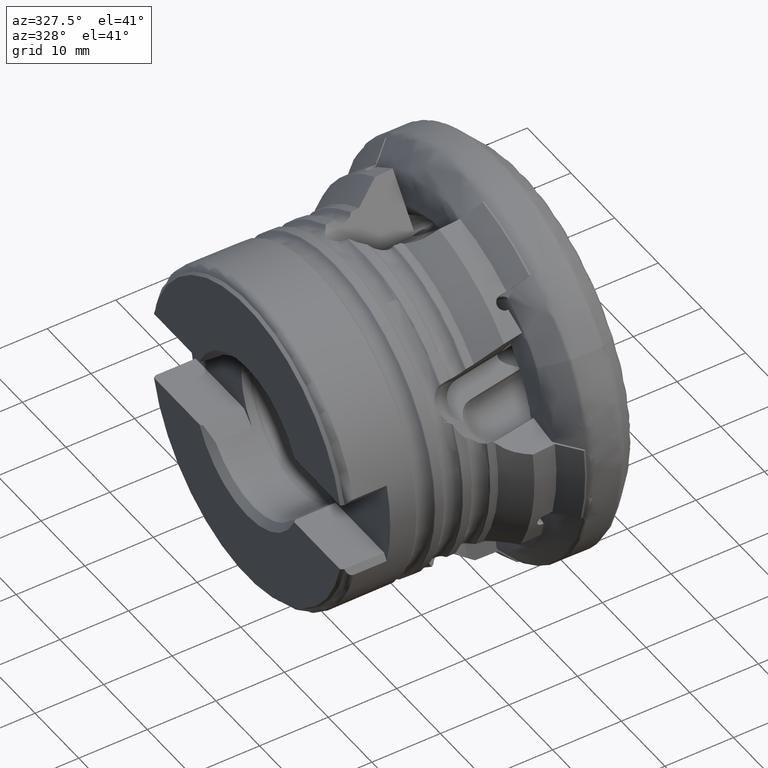
[diagram: clean part render]
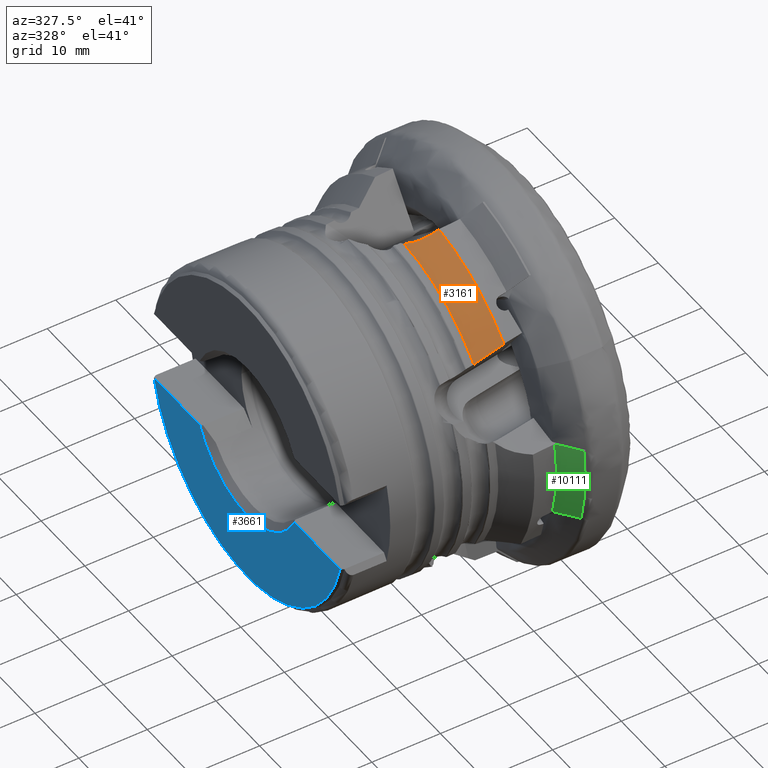
[diagram: same view with three faces highlighted in distinct colors, each labeled with its STEP entity id]
A machine part, auxiliary view with three faces highlighted in distinct colors.
Their STEP definitions:

[orange] entity #3161 — the highlighted conical surface has half-angle 35 deg.
#283 = CARTESIAN_POINT ( 'NONE',  ( -17.09177741719236100, -17.38901991840321800, 15.05396912038073300 ) ) ;
#494 = CARTESIAN_POINT ( 'NONE',  ( -16.81278394266350800, -1.729703990628124000, 23.13182447491075100 ) ) ;
#498 = DIRECTION ( 'NONE',  ( 1.000000000000000000, 1.224646799147353700E-016, -0.0000000000000000000 ) ) ;
#670 = CARTESIAN_POINT ( 'NONE',  ( -16.99323612728315800, -1.501126212548654900, 23.02010754296652500 ) ) ;
#1061 = ORIENTED_EDGE ( 'NONE', *, *, #3544, .F. ) ;
#1340 = CARTESIAN_POINT ( 'NONE',  ( -14.57097482284019700, -3.304314334836477400, 24.54371157015447800 ) ) ;
#1708 = ORIENTED_EDGE ( 'NONE', *, *, #6201, .F. ) ;
#1724 = DIRECTION ( 'NONE',  ( 1.000000000000000000, 1.224646799147353700E-016, -0.0000000000000000000 ) ) ;
#1960 = DIRECTION ( 'NONE',  ( -1.508455196501570700E-016, 1.000000000000000000, 0.0000000000000000000 ) ) ;
#2095 = EDGE_LOOP ( 'NONE', ( #5012, #4713, #1061, #1708, #8271, #5574 ) ) ;
#2123 = CARTESIAN_POINT ( 'NONE',  ( -14.66744534277638600, -18.17916554082694000, 16.72117476408119100 ) ) ;
#2154 = CARTESIAN_POINT ( 'NONE',  ( -17.09177741719236100, -17.38901991840321800, 15.05396912038073300 ) ) ;
#2202 = CARTESIAN_POINT ( 'NONE',  ( -16.20434289690146600, -2.329251206457319000, 23.50697310479047900 ) ) ;
#2219 = EDGE_CURVE ( 'NONE', #3242, #4274, #5347, .T. ) ;
#2360 = CARTESIAN_POINT ( 'NONE',  ( -14.31907578302989500, -3.380992286711682800, 24.71124643157457300 ) ) ;
#2499 = CARTESIAN_POINT ( 'NONE',  ( -13.44999999999999600, -1.647149944853190200E-015, 0.0000000000000000000 ) ) ;
#2899 = CARTESIAN_POINT ( 'NONE',  ( -13.73980114780748900, -3.557206910315650700, 25.09629959974075000 ) ) ;
#3025 = CARTESIAN_POINT ( 'NONE',  ( -14.81667960797364400, -3.204068818295938500, 24.38363031312749000 ) ) ;
#3161 = ADVANCED_FACE ( 'NONE', ( #4097 ), #3840, .T. ) ;
#3242 = VERTEX_POINT ( 'NONE', #8223 ) ;
#3315 = CARTESIAN_POINT ( 'NONE',  ( -17.02616092073438000, -1.459420559903491300, 22.99972398863590700 ) ) ;
#3359 = CARTESIAN_POINT ( 'NONE',  ( -13.44999999999999200, -3.645197496534137400, 25.28863450665656700 ) ) ;
#3544 = EDGE_CURVE ( 'NONE', #5458, #4274, #8727, .T. ) ;
#3572 = EDGE_CURVE ( 'NONE', #10144, #9287, #3899, .T. ) ;
#3840 = CONICAL_SURFACE ( 'NONE', #8332, 25.54999999999999700, 0.6108652381980159700 ) ;
#3887 = DIRECTION ( 'NONE',  ( -1.357904873563058500E-016, 1.000000000000000000, 0.0000000000000000000 ) ) ;
#3899 = B_SPLINE_CURVE_WITH_KNOTS ( 'NONE', 3,
 ( #9453, #494, #6224, #2202, #7037, #5410, #8670, #3025, #1340, #4646 ),
 .UNSPECIFIED., .F., .F.,
 ( 4, 2, 2, 2, 4 ),
 ( 0.0000000000000000000, 0.0009322666585190484900, 0.001864533317038097400, 0.002796799975557146300, 0.003729066634076195700 ),
 .UNSPECIFIED. ) ;
#4097 = FACE_OUTER_BOUND ( 'NONE', #2095, .T. ) ;
#4141 = DIRECTION ( 'NONE',  ( -1.357904873563058500E-016, 1.000000000000000000, 0.0000000000000000000 ) ) ;
#4274 = VERTEX_POINT ( 'NONE', #283 ) ;
#4646 = CARTESIAN_POINT ( 'NONE',  ( -14.31907578302989500, -3.380992286711682800, 24.71124643157457300 ) ) ;
#4713 = ORIENTED_EDGE ( 'NONE', *, *, #2219, .T. ) ;
#4918 = CARTESIAN_POINT ( 'NONE',  ( -17.05900803971395900, -1.417771888325609000, 22.97928544393196400 ) ) ;
#5012 = ORIENTED_EDGE ( 'NONE', *, *, #10496, .F. ) ;
#5144 = AXIS2_PLACEMENT_3D ( 'NONE', #8708, #498, #1960 ) ;
#5347 = CIRCLE ( 'NONE', #5144, 23.00000000000001100 ) ;
#5410 = CARTESIAN_POINT ( 'NONE',  ( -15.53326648616703300, -2.824767493026014700, 23.92552388878390000 ) ) ;
#5458 = VERTEX_POINT ( 'NONE', #5994 ) ;
#5574 = ORIENTED_EDGE ( 'NONE', *, *, #3572, .F. ) ;
#5592 = CIRCLE ( 'NONE', #8840, 25.54999999999999700 ) ;
#5994 = CARTESIAN_POINT ( 'NONE',  ( -13.44999999999999800, -18.56938980795375500, 17.54936643187619800 ) ) ;
#6020 = CARTESIAN_POINT ( 'NONE',  ( -14.31907578302989500, -3.380992286711682800, 24.71124643157457300 ) ) ;
#6183 = CARTESIAN_POINT ( 'NONE',  ( -13.44999999999999800, -18.56938980795375500, 17.54936643187619800 ) ) ;
#6201 = EDGE_CURVE ( 'NONE', #6876, #5458, #5592, .T. ) ;
#6224 = CARTESIAN_POINT ( 'NONE',  ( -16.61789162273989400, -1.939967311233909300, 23.25174155899308200 ) ) ;
#6422 = CARTESIAN_POINT ( 'NONE',  ( -14.02949620350618400, -3.469139396165321200, 24.90383993235173300 ) ) ;
#6876 = VERTEX_POINT ( 'NONE', #10360 ) ;
#7037 = CARTESIAN_POINT ( 'NONE',  ( -15.98656619744976500, -2.507069350563997800, 23.64174319475927900 ) ) ;
#7339 = DIRECTION ( 'NONE',  ( 1.000000000000000000, 1.224646799147353700E-016, -0.0000000000000000000 ) ) ;
#7833 = CARTESIAN_POINT ( 'NONE',  ( -15.88177324624308400, -17.78607819981101600, 15.88978780021098000 ) ) ;
#8109 = EDGE_CURVE ( 'NONE', #9287, #6876, #8655, .T. ) ;
#8135 = CARTESIAN_POINT ( 'NONE',  ( -16.99323612728315800, -1.501126212548654900, 23.02010754296652500 ) ) ;
#8223 = CARTESIAN_POINT ( 'NONE',  ( -17.09177741719236800, -1.376180282805409300, 22.95879195056258500 ) ) ;
#8271 = ORIENTED_EDGE ( 'NONE', *, *, #8109, .F. ) ;
#8332 = AXIS2_PLACEMENT_3D ( 'NONE', #2499, #7339, #4141 ) ;
#8504 = CARTESIAN_POINT ( 'NONE',  ( -13.44999999999999600, -1.647149944853190200E-015, 0.0000000000000000000 ) ) ;
#8655 = B_SPLINE_CURVE_WITH_KNOTS ( 'NONE', 3,
 ( #6020, #6422, #2899, #3359 ),
 .UNSPECIFIED., .F., .F.,
 ( 4, 4 ),
 ( 0.0005733330260200920900, 0.001649659086757639600 ),
 .UNSPECIFIED. ) ;
#8670 = CARTESIAN_POINT ( 'NONE',  ( -15.29731333759014000, -2.964798779107516800, 24.07483052456850500 ) ) ;
#8708 = CARTESIAN_POINT ( 'NONE',  ( -17.09177741719236500, -2.093139050570365100E-015, 0.0000000000000000000 ) ) ;
#8727 = B_SPLINE_CURVE_WITH_KNOTS ( 'NONE', 3,
 ( #6183, #2123, #7833, #2154 ),
 .UNSPECIFIED., .F., .F.,
 ( 4, 4 ),
 ( 2.502383203320370600E-007, 0.004570023052667737700 ),
 .UNSPECIFIED. ) ;
#8840 = AXIS2_PLACEMENT_3D ( 'NONE', #8504, #1724, #3887 ) ;
#8945 = CARTESIAN_POINT ( 'NONE',  ( -17.09177741719236800, -1.376180282805409300, 22.95879195056258500 ) ) ;
#9287 = VERTEX_POINT ( 'NONE', #2360 ) ;
#9336 =( BOUNDED_CURVE ( )  B_SPLINE_CURVE ( 3, ( #8945, #4918, #3315, #8135 ),
 .UNSPECIFIED., .F., .T. ) 
 B_SPLINE_CURVE_WITH_KNOTS ( ( 4, 4 ),
 ( 3.683396287500181600, 3.686253314913215300 ),
 .UNSPECIFIED. ) 
 CURVE ( )  GEOMETRIC_REPRESENTATION_ITEM ( )  RATIONAL_B_SPLINE_CURVE ( ( 1.000000000000000000, 0.9999993197829790700, 0.9999993197829790700, 1.000000000000000000 ) ) 
 REPRESENTATION_ITEM ( '' )  );
#9453 = CARTESIAN_POINT ( 'NONE',  ( -16.99323612728315800, -1.501126212548654900, 23.02010754296652500 ) ) ;
#10144 = VERTEX_POINT ( 'NONE', #670 ) ;
#10360 = CARTESIAN_POINT ( 'NONE',  ( -13.44999999999999200, -3.645197496534137400, 25.28863450665656700 ) ) ;
#10496 = EDGE_CURVE ( 'NONE', #3242, #10144, #9336, .T. ) ;

[blue] entity #3661 — the highlighted planar face has unit normal (-1, -0, 0).
#263 = CARTESIAN_POINT ( 'NONE',  ( -39.10000000000000100, -6.979751427917642700E-015, 0.0000000000000000000 ) ) ;
#456 = AXIS2_PLACEMENT_3D ( 'NONE', #9880, #1793, #6653 ) ;
#686 = PLANE ( 'NONE',  #3063 ) ;
#1284 = FACE_OUTER_BOUND ( 'NONE', #10396, .T. ) ;
#1793 = DIRECTION ( 'NONE',  ( 1.000000000000000000, 1.224646799147353700E-016, -0.0000000000000000000 ) ) ;
#1911 = CARTESIAN_POINT ( 'NONE',  ( -39.10000000000000100, 21.29663569925563800, -5.199999999999993100 ) ) ;
#2042 = ORIENTED_EDGE ( 'NONE', *, *, #2389, .T. ) ;
#2308 = CARTESIAN_POINT ( 'NONE',  ( -39.10000000000000100, -4.788368984666153600E-015, 0.0000000000000000000 ) ) ;
#2389 = EDGE_CURVE ( 'NONE', #9244, #5489, #5958, .T. ) ;
#2552 = EDGE_CURVE ( 'NONE', #3851, #9702, #3085, .T. ) ;
#2814 = VECTOR ( 'NONE', #10052, 1000.000000000000000 ) ;
#2898 = CARTESIAN_POINT ( 'NONE',  ( -39.10000000000000100, -10.84253775644799600, -5.199999999999993100 ) ) ;
#3063 = AXIS2_PLACEMENT_3D ( 'NONE', #2308, #4039, #8851 ) ;
#3085 = LINE ( 'NONE', #7265, #2814 ) ;
#3260 = EDGE_CURVE ( 'NONE', #3851, #5489, #8367, .T. ) ;
#3486 = ORIENTED_EDGE ( 'NONE', *, *, #2552, .T. ) ;
#3508 = ORIENTED_EDGE ( 'NONE', *, *, #9603, .T. ) ;
#3661 = ADVANCED_FACE ( 'NONE', ( #1284 ), #686, .T. ) ;
#3851 = VERTEX_POINT ( 'NONE', #10302 ) ;
#3937 = DIRECTION ( 'NONE',  ( 0.0000000000000000000, -1.000000000000000000, 0.0000000000000000000 ) ) ;
#4039 = DIRECTION ( 'NONE',  ( -1.000000000000000000, -1.224646799147353700E-016, 0.0000000000000000000 ) ) ;
#5257 = ORIENTED_EDGE ( 'NONE', *, *, #3260, .F. ) ;
#5482 = DIRECTION ( 'NONE',  ( 1.000000000000000000, 1.224646799147353700E-016, -0.0000000000000000000 ) ) ;
#5489 = VERTEX_POINT ( 'NONE', #1911 ) ;
#5627 = CARTESIAN_POINT ( 'NONE',  ( -39.10000000000000100, 10.84253775644798200, -5.199999999999993100 ) ) ;
#5938 = CARTESIAN_POINT ( 'NONE',  ( -39.09999999999999400, -54.99999999999999300, -5.199999999999993100 ) ) ;
#5958 = LINE ( 'NONE', #5938, #10024 ) ;
#6653 = DIRECTION ( 'NONE',  ( 0.0000000000000000000, -1.000000000000000000, 0.0000000000000000000 ) ) ;
#7265 = CARTESIAN_POINT ( 'NONE',  ( -39.09999999999999400, -54.99999999999999300, -5.199999999999993100 ) ) ;
#8055 = DIRECTION ( 'NONE',  ( -1.224646799147353700E-016, 1.000000000000000000, 0.0000000000000000000 ) ) ;
#8367 = CIRCLE ( 'NONE', #456, 21.92228756555322600 ) ;
#8481 = CIRCLE ( 'NONE', #9954, 12.02500000000000400 ) ;
#8851 = DIRECTION ( 'NONE',  ( 1.224646799147353700E-016, -1.000000000000000000, 0.0000000000000000000 ) ) ;
#9244 = VERTEX_POINT ( 'NONE', #5627 ) ;
#9603 = EDGE_CURVE ( 'NONE', #9702, #9244, #8481, .T. ) ;
#9702 = VERTEX_POINT ( 'NONE', #2898 ) ;
#9880 = CARTESIAN_POINT ( 'NONE',  ( -39.10000000000000100, -3.487816653940823400E-015, 0.0000000000000000000 ) ) ;
#9954 = AXIS2_PLACEMENT_3D ( 'NONE', #263, #5482, #3937 ) ;
#10024 = VECTOR ( 'NONE', #8055, 1000.000000000000000 ) ;
#10052 = DIRECTION ( 'NONE',  ( -1.224646799147353700E-016, 1.000000000000000000, 0.0000000000000000000 ) ) ;
#10302 = CARTESIAN_POINT ( 'NONE',  ( -39.10000000000000100, -21.29663569925564200, -5.199999999999993100 ) ) ;
#10396 = EDGE_LOOP ( 'NONE', ( #2042, #5257, #3486, #3508 ) ) ;

[green] entity #10111 — the highlighted conical surface has half-angle 45 deg.
#165 = EDGE_CURVE ( 'NONE', #4781, #198, #8813, .T. ) ;
#198 = VERTEX_POINT ( 'NONE', #3399 ) ;
#292 = DIRECTION ( 'NONE',  ( -1.234678630588474800E-016, 1.000000000000000000, 0.0000000000000000000 ) ) ;
#1559 = CARTESIAN_POINT ( 'NONE',  ( -8.536316897199606400, -26.90777013685565700, 4.299903370355748300 ) ) ;
#1815 = VERTEX_POINT ( 'NONE', #4551 ) ;
#1817 = DIRECTION ( 'NONE',  ( -1.234678630588474800E-016, 1.000000000000000000, 0.0000000000000000000 ) ) ;
#1932 = ORIENTED_EDGE ( 'NONE', *, *, #2060, .T. ) ;
#2060 = EDGE_CURVE ( 'NONE', #1815, #4781, #2327, .T. ) ;
#2318 = ORIENTED_EDGE ( 'NONE', *, *, #8850, .F. ) ;
#2327 = CIRCLE ( 'NONE', #6427, 25.55000000000000100 ) ;
#2752 = CARTESIAN_POINT ( 'NONE',  ( -8.534480670999167600, -26.29770865664808000, -7.140705732938710200 ) ) ;
#3399 = CARTESIAN_POINT ( 'NONE',  ( -7.684314575050733800, -27.13838194364330600, -7.288225125566254900 ) ) ;
#3988 = EDGE_LOOP ( 'NONE', ( #1932, #6720, #8550, #2318 ) ) ;
#4408 = CARTESIAN_POINT ( 'NONE',  ( -10.23431457505075100, -24.61589767024377200, -6.845442417264746600 ) ) ;
#4551 = CARTESIAN_POINT ( 'NONE',  ( -10.23431457505075500, -25.14196125802322300, 4.547997812231153100 ) ) ;
#4738 = CARTESIAN_POINT ( 'NONE',  ( -10.23431457505075500, -25.14196125802322300, 4.547997812231153100 ) ) ;
#4781 = VERTEX_POINT ( 'NONE', #4408 ) ;
#5076 = CARTESIAN_POINT ( 'NONE',  ( -7.684314575050733800, -27.78787658810082200, 4.176591280515511400 ) ) ;
#5230 = DIRECTION ( 'NONE',  ( 1.000000000000000000, 1.224646799147353700E-016, -0.0000000000000000000 ) ) ;
#5394 = CARTESIAN_POINT ( 'NONE',  ( -10.23431457505075100, -24.61589767024377200, -6.845442417264746600 ) ) ;
#5743 = AXIS2_PLACEMENT_3D ( 'NONE', #8041, #9653, #1817 ) ;
#5930 = FACE_OUTER_BOUND ( 'NONE', #3988, .T. ) ;
#6175 = B_SPLINE_CURVE_WITH_KNOTS ( 'NONE', 3,
 ( #4738, #6449, #1559, #6418 ),
 .UNSPECIFIED., .F., .F.,
 ( 4, 4 ),
 ( 2.904376201262533800E-007, 0.003693704948034680200 ),
 .UNSPECIFIED. ) ;
#6418 = CARTESIAN_POINT ( 'NONE',  ( -7.684314575050733800, -27.78787658810082200, 4.176591280515511400 ) ) ;
#6427 = AXIS2_PLACEMENT_3D ( 'NONE', #7389, #8731, #8323 ) ;
#6449 = CARTESIAN_POINT ( 'NONE',  ( -9.386535554108565500, -26.02599210727665700, 4.423654001811199200 ) ) ;
#6720 = ORIENTED_EDGE ( 'NONE', *, *, #165, .T. ) ;
#7387 = AXIS2_PLACEMENT_3D ( 'NONE', #8844, #5230, #292 ) ;
#7389 = CARTESIAN_POINT ( 'NONE',  ( -10.23431457505075800, -1.253342058580302000E-015, 0.0000000000000000000 ) ) ;
#7865 = CONICAL_SURFACE ( 'NONE', #5743, 28.10000000000000100, 0.7853981633974442800 ) ;
#8041 = CARTESIAN_POINT ( 'NONE',  ( -7.684314575050737300, -9.410571247977243100E-016, 0.0000000000000000000 ) ) ;
#8122 = CIRCLE ( 'NONE', #7387, 28.10000000000000100 ) ;
#8323 = DIRECTION ( 'NONE',  ( -1.357904873563058300E-016, 1.000000000000000000, 0.0000000000000000000 ) ) ;
#8373 = VERTEX_POINT ( 'NONE', #5076 ) ;
#8550 = ORIENTED_EDGE ( 'NONE', *, *, #10124, .F. ) ;
#8553 = CARTESIAN_POINT ( 'NONE',  ( -7.684314575050733800, -27.13838194364330600, -7.288225125566254900 ) ) ;
#8564 = CARTESIAN_POINT ( 'NONE',  ( -9.384497135036914600, -25.45689583610079900, -6.993118891498822300 ) ) ;
#8731 = DIRECTION ( 'NONE',  ( 1.000000000000000000, 1.224646799147353700E-016, -0.0000000000000000000 ) ) ;
#8813 = B_SPLINE_CURVE_WITH_KNOTS ( 'NONE', 3,
 ( #5394, #8564, #2752, #8553 ),
 .UNSPECIFIED., .F., .F.,
 ( 4, 4 ),
 ( 2.835171608617405200E-007, 0.003614350953764513200 ),
 .UNSPECIFIED. ) ;
#8844 = CARTESIAN_POINT ( 'NONE',  ( -7.684314575050737300, -9.410571247977243100E-016, 0.0000000000000000000 ) ) ;
#8850 = EDGE_CURVE ( 'NONE', #1815, #8373, #6175, .T. ) ;
#9653 = DIRECTION ( 'NONE',  ( 1.000000000000000000, 1.224646799147353700E-016, -0.0000000000000000000 ) ) ;
#10111 = ADVANCED_FACE ( 'NONE', ( #5930 ), #7865, .T. ) ;
#10124 = EDGE_CURVE ( 'NONE', #8373, #198, #8122, .T. ) ;